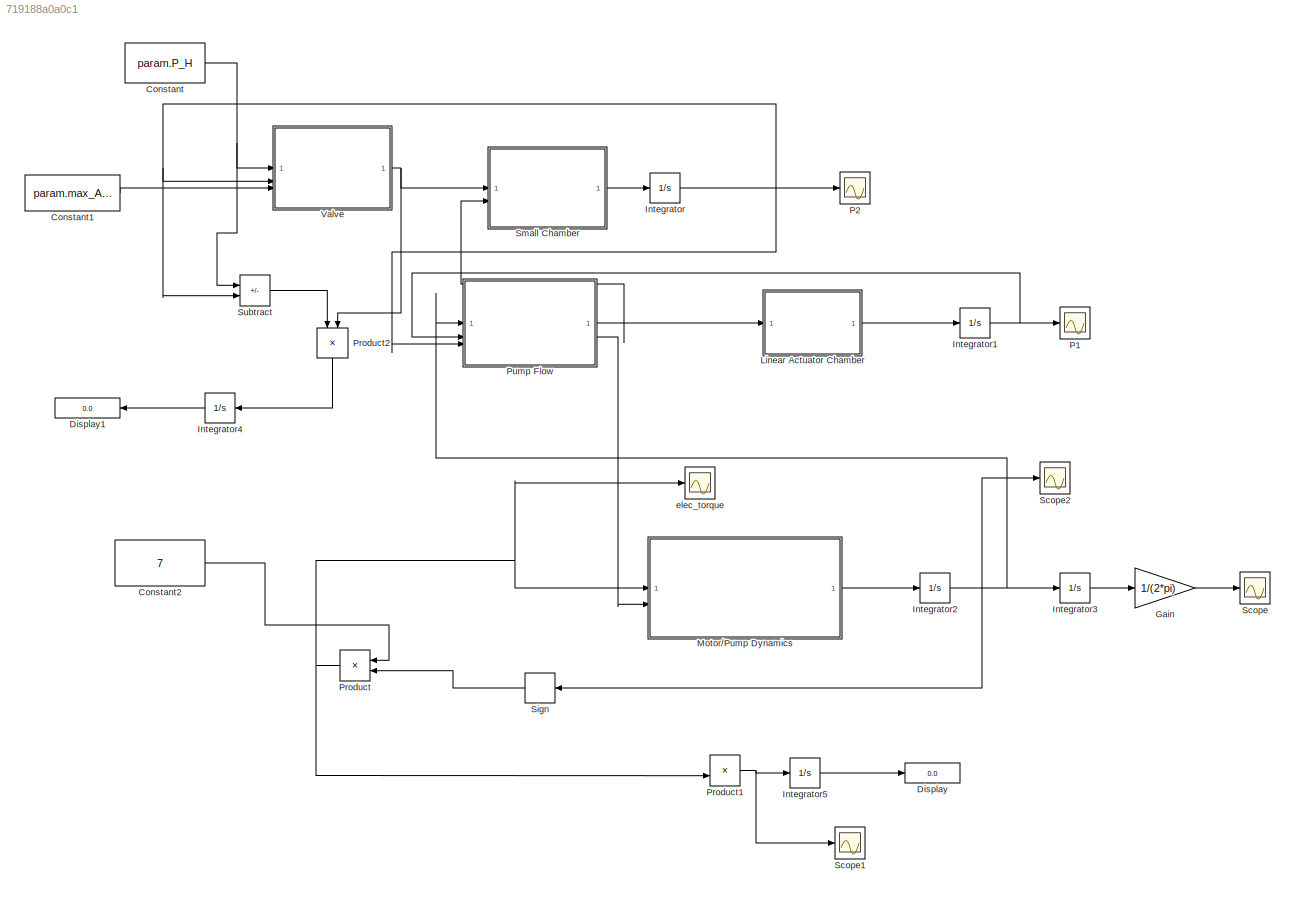
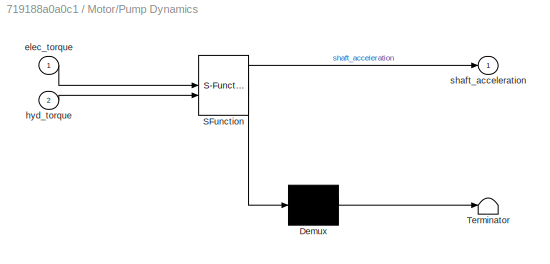
MODEL slx_719188a0a0c1
KIND model
CONFIG AbsTol = auto
CONFIG EnableMultiTasking = off
CONFIG FixedStep = 1e-6
CONFIG InitFcn = %% Parameters\n\nparam = struct();\n\n% Volume of chambers \nparam.V1_0 = 2e-3;\nparam.V2_0 = 20e-6;\n\n% Pressure rails\nparam.P_H = 20e6;\nparam.P_M = 10e6;\n\n% Valve things\nparam.max_Avt = 0.5*0.25*pi*(20e-3)^2;\nparam.Cd = 0.6;\n\n% Fluid properties\nparam.beta = 1.8e9;\nparam.rho = 870;\n\n% Electric motor stuff\nparam.Kt = 70.5e-3;\nparam.Ke = 70.5e-3;\nparam.J_elec = 140e-7;\n\n% Pump things\nparam.J_hyd = 53000e-...<+42ch>
CONFIG MaxStep = 1e-5
CONFIG MinStep = auto
CONFIG RelTol = 1e-6
CONFIG SampleTimeConstraint = Unconstrained
CONFIG SolverName = ode4
CONFIG StartTime = 0.0
CONFIG StopTime = 0.3
BLOCK [Constant] Constant
  Value = param.P_H
BLOCK [Constant] Constant1
  Value = param.max_Avt
BLOCK [Constant] Constant2
  Value = 7
BLOCK [Display] Display
  Decimation = 1
BLOCK [Display] Display1
  Decimation = 1
  NameLocation = top
BLOCK [Gain] Gain
  Gain = 1/(2*pi)
BLOCK [Integrator] Integrator
  InitialCondition = param.P_M
BLOCK [Integrator] Integrator1
  InitialCondition = param.P_M
BLOCK [Integrator] Integrator2
BLOCK [Integrator] Integrator3
BLOCK [Integrator] Integrator4
  NameLocation = top
BLOCK [Integrator] Integrator5
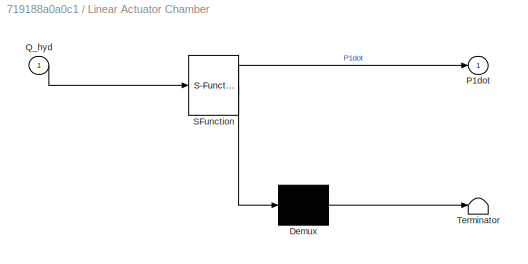
BLOCK [SubSystem] Linear Actuator Chamber
  ErrorFcn = Stateflow.Translate.translate
  PermitHierarchicalResolution = ExplicitOnly
  SFBlockType = MATLAB Function
  TreatAsAtomicUnit = on
BLOCK [Demux] Linear Actuator Chamber/ Demux 
  Outputs = 1
BLOCK [S-Function] Linear Actuator Chamber/ SFunction 
  EnableBusSupport = on
  FunctionName = sf_sfun
  Parameters = param
  PortCounts = [1 2]
  SFcnIsStateOwnerBlock = off
  SFunctionDeploymentMode = off
  Tag = Stateflow S-Function 5
BLOCK [Terminator] Linear Actuator Chamber/ Terminator 
BLOCK [Outport] Linear Actuator Chamber/P1dot
BLOCK [Inport] Linear Actuator Chamber/Q_hyd
BLOCK [SubSystem] Motor//Pump Dynamics
  ErrorFcn = Stateflow.Translate.translate
  PermitHierarchicalResolution = ExplicitOnly
  SFBlockType = MATLAB Function
  TreatAsAtomicUnit = on
BLOCK [Demux] Motor//Pump Dynamics/ Demux 
  Outputs = 1
BLOCK [S-Function] Motor//Pump Dynamics/ SFunction 
  EnableBusSupport = on
  FunctionName = sf_sfun
  Parameters = param
  PortCounts = [2 2]
  SFcnIsStateOwnerBlock = off
  SFunctionDeploymentMode = off
  Tag = Stateflow S-Function 6
BLOCK [Terminator] Motor//Pump Dynamics/ Terminator 
BLOCK [Inport] Motor//Pump Dynamics/elec_torque
BLOCK [Inport] Motor//Pump Dynamics/hyd_torque
  Port = 2
BLOCK [Outport] Motor//Pump Dynamics/shaft_acceleration
BLOCK [Scope] P1
  Floating = off
  NumInputPorts = 1
  ScopeSpecificationString = Simulink.scopes.TimeScopeBlockCfg('CurrentConfiguration', extmgr.ConfigurationSet(extmgr.Configuration('Core','General UI',true,'FigureColor',[1 1 1]),extmgr.Configuration('Core','Source UI',true),extmgr.Configuration('Sources','WiredSimulink',true),extmgr.Configuration('Visuals','Time Domain',true,'SerializedDisplays',{struct('MinYLimReal','9999590.8956','MaxYLimReal','10003681.71055','YLabelReal...<+1568ch>
BLOCK [Scope] P2
  Floating = off
  NumInputPorts = 1
  ScopeSpecificationString = Simulink.scopes.TimeScopeBlockCfg('CurrentConfiguration', extmgr.ConfigurationSet(extmgr.Configuration('Core','General UI',true),extmgr.Configuration('Core','Source UI',true),extmgr.Configuration('Sources','WiredSimulink',true,'DataLoggingVariableName','ScopeData1'),extmgr.Configuration('Visuals','Time Domain',true,'SerializedDisplays',{struct('MinYLimReal','19989557.4632','MaxYLimReal','19990071....<+1490ch>
BLOCK [Product] Product
  NameLocation = top
BLOCK [Product] Product1
BLOCK [Product] Product2
  NameLocation = left
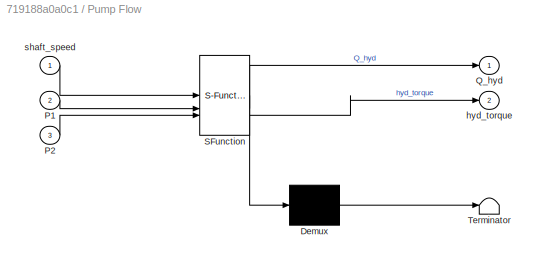
BLOCK [SubSystem] Pump Flow
  ErrorFcn = Stateflow.Translate.translate
  PermitHierarchicalResolution = ExplicitOnly
  SFBlockType = MATLAB Function
  TreatAsAtomicUnit = on
BLOCK [Demux] Pump Flow/ Demux 
  Outputs = 1
BLOCK [S-Function] Pump Flow/ SFunction 
  EnableBusSupport = on
  FunctionName = sf_sfun
  Parameters = param
  PortCounts = [3 3]
  SFcnIsStateOwnerBlock = off
  SFunctionDeploymentMode = off
  Tag = Stateflow S-Function 3
BLOCK [Terminator] Pump Flow/ Terminator 
BLOCK [Inport] Pump Flow/P1
  Port = 2
BLOCK [Inport] Pump Flow/P2
  Port = 3
BLOCK [Outport] Pump Flow/Q_hyd
BLOCK [Outport] Pump Flow/hyd_torque
  Port = 2
BLOCK [Inport] Pump Flow/shaft_speed
BLOCK [Scope] Scope
  Floating = off
  NumInputPorts = 1
  ScopeSpecificationString = Simulink.scopes.TimeScopeBlockCfg('CurrentConfiguration', extmgr.ConfigurationSet(extmgr.Configuration('Core','General UI',true),extmgr.Configuration('Core','Source UI',true),extmgr.Configuration('Sources','WiredSimulink',true,'DataLoggingVariableName','ScopeData3'),extmgr.Configuration('Visuals','Time Domain',true,'SerializedDisplays',{struct('MinYLimReal','-5.40686','MaxYLimReal','48.66178','YLa...<+1413ch>
BLOCK [Scope] Scope1
  Floating = off
  NumInputPorts = 1
  ScopeSpecificationString = Simulink.scopes.TimeScopeBlockCfg('CurrentConfiguration', extmgr.ConfigurationSet(extmgr.Configuration('Core','General UI',true),extmgr.Configuration('Core','Source UI',true),extmgr.Configuration('Sources','WiredSimulink',true,'DataLoggingVariableName','ScopeData1'),extmgr.Configuration('Visuals','Time Domain',true,'SerializedDisplays',{struct('MinYLimReal','-93.70058','MaxYLimReal','843.30524','Y...<+1404ch>
BLOCK [Scope] Scope2
  Floating = off
  NumInputPorts = 1
  ScopeSpecificationString = Simulink.scopes.TimeScopeBlockCfg('CurrentConfiguration', extmgr.ConfigurationSet(extmgr.Configuration('Core','General UI',true),extmgr.Configuration('Core','Source UI',true),extmgr.Configuration('Sources','WiredSimulink',true,'DataLoggingVariableName','ScopeData5'),extmgr.Configuration('Visuals','Time Domain',true,'SerializedDisplays',{struct('MinYLimReal','-348.40797','MaxYLimReal','601.2882','Y...<+1432ch>
BLOCK [Signum] Sign
  NameLocation = top
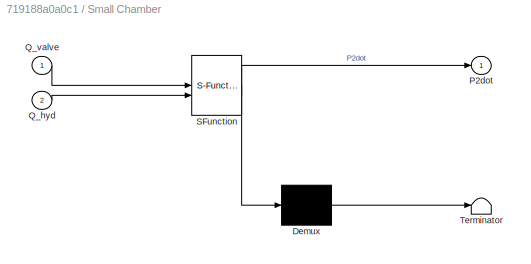
BLOCK [SubSystem] Small Chamber
  ErrorFcn = Stateflow.Translate.translate
  PermitHierarchicalResolution = ExplicitOnly
  SFBlockType = MATLAB Function
  TreatAsAtomicUnit = on
BLOCK [Demux] Small Chamber/ Demux 
  Outputs = 1
BLOCK [S-Function] Small Chamber/ SFunction 
  EnableBusSupport = on
  FunctionName = sf_sfun
  Parameters = param
  PortCounts = [2 2]
  SFcnIsStateOwnerBlock = off
  SFunctionDeploymentMode = off
  Tag = Stateflow S-Function 1
BLOCK [Terminator] Small Chamber/ Terminator 
BLOCK [Outport] Small Chamber/P2dot
BLOCK [Inport] Small Chamber/Q_hyd
  Port = 2
BLOCK [Inport] Small Chamber/Q_valve
BLOCK [Sum] Subtract
  IconShape = rectangular
  Inputs = +-
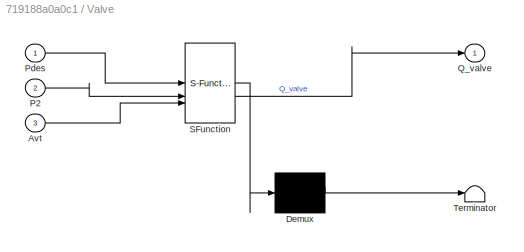
BLOCK [SubSystem] Valve
  ErrorFcn = Stateflow.Translate.translate
  PermitHierarchicalResolution = ExplicitOnly
  SFBlockType = MATLAB Function
  TreatAsAtomicUnit = on
BLOCK [Demux] Valve/ Demux 
  Outputs = 1
BLOCK [S-Function] Valve/ SFunction 
  EnableBusSupport = on
  FunctionName = sf_sfun
  Parameters = param
  PortCounts = [3 2]
  SFcnIsStateOwnerBlock = off
  SFunctionDeploymentMode = off
  Tag = Stateflow S-Function 2
BLOCK [Terminator] Valve/ Terminator 
BLOCK [Inport] Valve/Avt
  Port = 3
BLOCK [Inport] Valve/P2
  Port = 2
BLOCK [Inport] Valve/Pdes
BLOCK [Outport] Valve/Q_valve
BLOCK [Scope] elec_torque
  Floating = off
  NumInputPorts = 1
  ScopeSpecificationString = Simulink.scopes.TimeScopeBlockCfg('CurrentConfiguration', extmgr.ConfigurationSet(extmgr.Configuration('Core','General UI',true),extmgr.Configuration('Core','Source UI',true),extmgr.Configuration('Sources','WiredSimulink',true,'DataLoggingVariableName','ScopeData4'),extmgr.Configuration('Visuals','Time Domain',true,'SerializedDisplays',{struct('MinYLimReal','5.0039','MaxYLimReal','5.00614','YLabel...<+1406ch>
LINE Constant1:1 -> Valve:3
LINE Constant2:1 -> Product:1
NET Constant:1 -> Subtract:1, Valve:1
LINE Gain:1 -> Scope:1
NET Integrator1:1 -> P1:1, Pump Flow:2
NET Integrator2:1 -> Integrator3:1, Pump Flow:1, Scope2:1, Sign:1
LINE Integrator3:1 -> Gain:1
LINE Integrator4:1 -> Display1:1
LINE Integrator5:1 -> Display:1
NET Integrator:1 -> P2:1, Pump Flow:3, Subtract:2, Valve:2
LINE Linear Actuator Chamber:1 -> Integrator1:1
LINE Motor//Pump Dynamics:1 -> Integrator2:1
NET Product1:1 -> Integrator5:1, Scope1:1
LINE Product2:1 -> Integrator4:1
NET Product:1 -> Motor//Pump Dynamics:1, Product1:2, elec_torque:1
NET Pump Flow:1 -> Linear Actuator Chamber:1, Small Chamber:2
LINE Pump Flow:2 -> Motor//Pump Dynamics:2
LINE Sign:1 -> Product:2
LINE Small Chamber:1 -> Integrator:1
LINE Subtract:1 -> Product2:1
NET Valve:1 -> Product2:2, Small Chamber:1
note: NET lines group one-source signal fan-out (src -> all destinations, sorted); 1:1 wires keep LINE
CHART Small Chamber states=1 transitions=1
  STATE_LABEL 'eML_blk_kernel()'
  STATE_LABEL 'SCRIPT:\nfunction P2dot = fcn(param, Q_valve, Q_hyd)\n\nP2dot = (param.beta/param.V2_0)*(Q_valve - Q_hyd);\n'
CHART Valve states=1 transitions=1
  STATE_LABEL 'eML_blk_kernel()'
  STATE_LABEL 'SCRIPT:\nfunction Q_valve = fcn(Pdes, P2, Avt, param)\n\nQ_valve = param.Cd*Avt*sqrt((2/param.rho)*abs(Pdes-P2))*sign(Pdes-P2);\n'
CHART Pump Flow states=1 transitions=1
  STATE_LABEL 'eML_blk_kernel()'
  STATE_LABEL 'SCRIPT:\nfunction [Q_hyd, hyd_torque] = fcn(param, shaft_speed, P1, P2)\n\nQ_hyd = (param.hyd_D/(2*pi))*shaft_speed;\n\nhyd_torque = (param.hyd_D/(2*pi))*(P2 - P1);\n\n% Q_pump = (param.hyd_D/(2*pi))*shaft_speed;'
CHART Linear Actuator Chamber states=1 transitions=1
  STATE_LABEL 'eML_blk_kernel()'
  STATE_LABEL 'SCRIPT:\nfunction P1dot = fcn(param, Q_hyd)\n\nP1dot = (param.beta/param.V1_0)*Q_hyd;\n'
CHART Motor//Pump Dynamics states=1 transitions=1
  STATE_LABEL 'eML_blk_kernel()'
  STATE_LABEL 'SCRIPT:\nfunction shaft_acceleration = fcn(param, elec_torque, hyd_torque)\n\nshaft_acceleration = (1/(param.J_hyd+param.J_elec))*(hyd_torque - elec_torque);\n'
CHART  states=0 transitions=0
CHART  states=0 transitions=0
CHART  states=0 transitions=0
CHART  states=0 transitions=0
CHART  states=0 transitions=0
